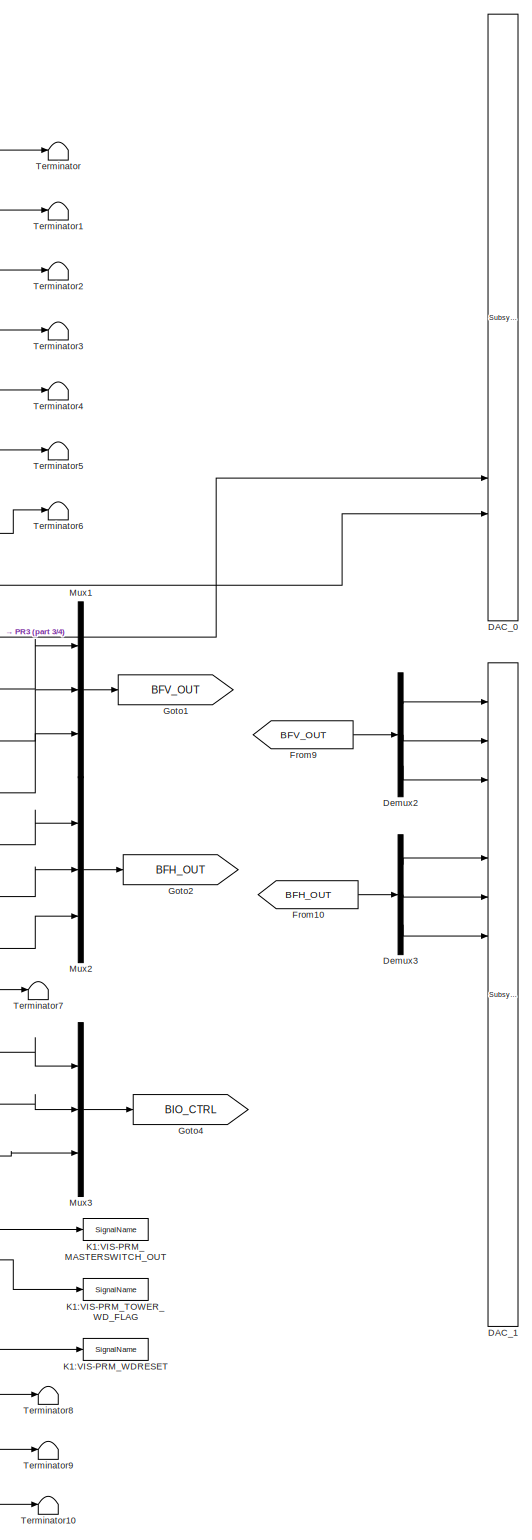
[diagram: root canvas - part 1/4, center side, full height]
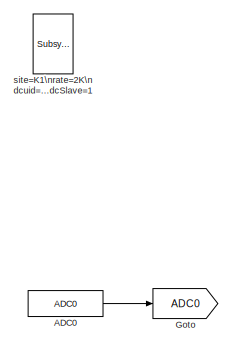
[diagram: root canvas - part 2/4, top left region]
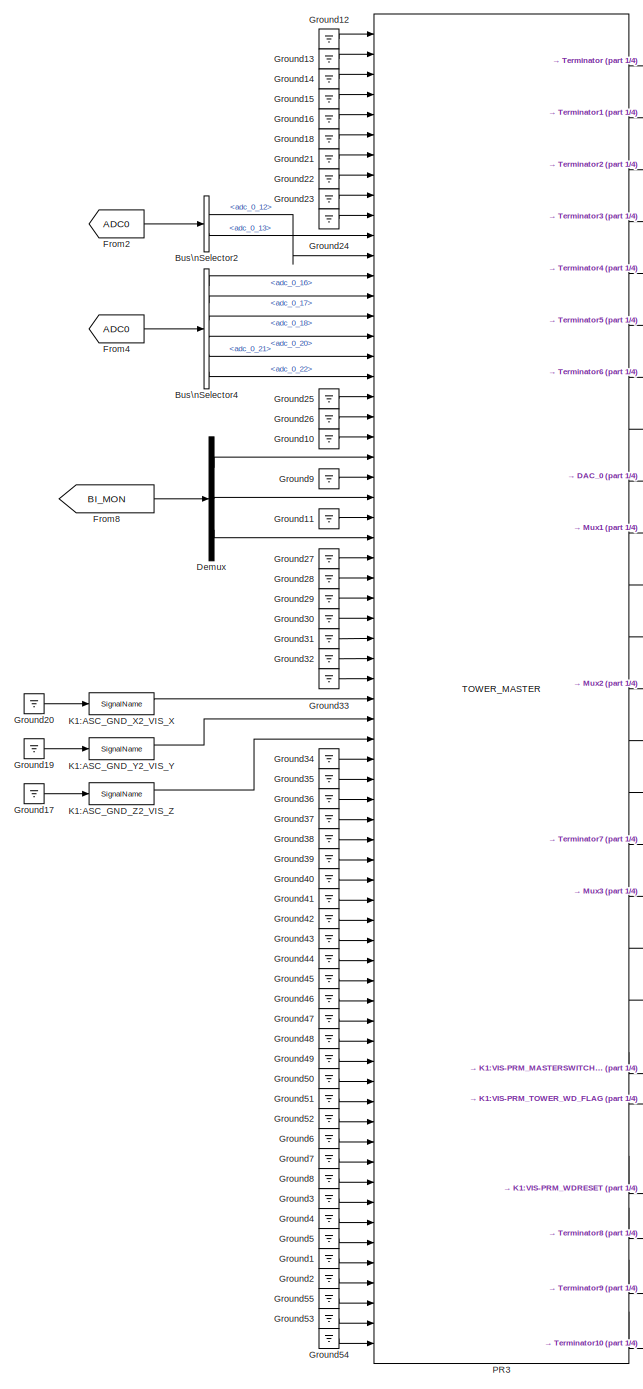
[diagram: root canvas - part 3/4, left side, full height]
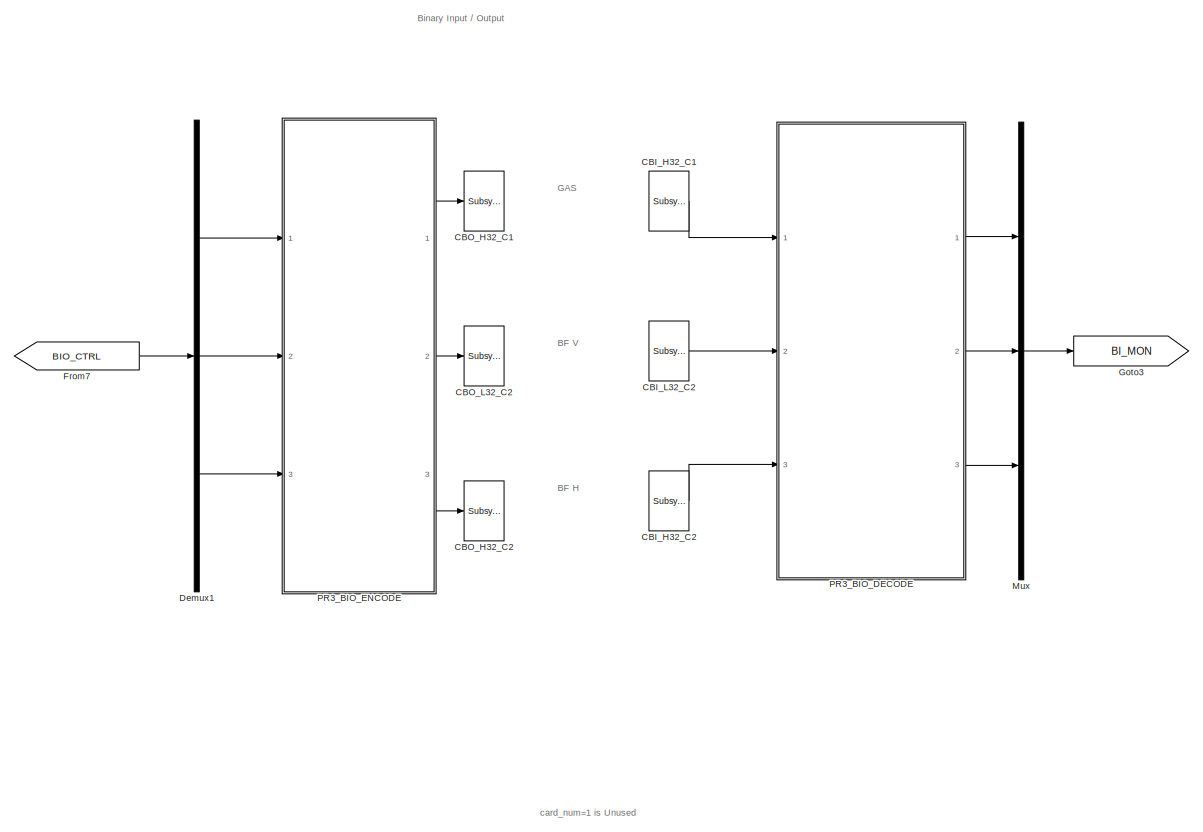
[diagram: root canvas - part 4/4, middle right region]
MODEL k1vispr3t
KIND model
BLOCK [Reference] ADC0  REF=cdsAdcx0/ADC0
  AttributesFormatString = %<Description>\\n%<Tag>
  Description = type-GSC_16AI64SSA\ncard_num=0
  Ports = [0, 1]
  SID = 271
  SourceBlock = cdsAdcx0/ADC0
  SourceType = SubSystem
  Tag = cdsAdc
BLOCK [BusSelector] Bus\nSelector2
  AttributesFormatString = %<Description>
  Description = ADC Selector
  OutputSignals = adc_0_12,adc_0_13
  Ports = [1, 2]
  SID = 403
BLOCK [BusSelector] Bus\nSelector4
  AttributesFormatString = %<Description>
  Description = ADC Selector
  OutputSignals = adc_0_16,adc_0_17,adc_0_18,adc_0_20,adc_0_21,adc_0_22
  Ports = [1, 6]
  SID = 635
BLOCK [Reference] CBI_H32_C1  REF=cdsCDI64/Subsystem
  AttributesFormatString = %<Tag>\\n%<Description>
  Description = card_num=3
  Ports = [0, 1]
  SID = 1011
  SourceBlock = cdsCDI64/Subsystem
  SourceType = SubSystem
  Tag = cdsCDI64
BLOCK [Reference] CBI_H32_C2  REF=cdsCDI64/Subsystem
  AttributesFormatString = %<Tag>\\n%<Description>
  Description = card_num=5
  Ports = [0, 1]
  SID = 1012
  SourceBlock = cdsCDI64/Subsystem
  SourceType = SubSystem
  Tag = cdsCDI64
BLOCK [Reference] CBI_L32_C2  REF=cdsCDI64/Subsystem
  AttributesFormatString = %<Tag>\\n%<Description>
  Description = card_num=4
  Ports = [0, 1]
  SID = 1005
  SourceBlock = cdsCDI64/Subsystem
  SourceType = SubSystem
  Tag = cdsCDI64
BLOCK [Reference] CBO_H32_C1  REF=cdsCDO64/Subsystem
  AttributesFormatString = %<Tag>\\n%<Description>
  Description = card_num=3
  Ports = [1]
  SID = 1009
  SourceBlock = cdsCDO64/Subsystem
  SourceType = SubSystem
  Tag = cdsCDO64
BLOCK [Reference] CBO_H32_C2  REF=cdsCDO64/Subsystem
  AttributesFormatString = %<Tag>\\n%<Description>
  Description = card_num=5
  Ports = [1]
  SID = 1010
  SourceBlock = cdsCDO64/Subsystem
  SourceType = SubSystem
  Tag = cdsCDO64
BLOCK [Reference] CBO_L32_C2  REF=cdsCDO64/Subsystem
  AttributesFormatString = %<Tag>\\n%<Description>
  Description = card_num=4
  Ports = [1]
  SID = 1003
  SourceBlock = cdsCDO64/Subsystem
  SourceType = SubSystem
  Tag = cdsCDO64
BLOCK [Reference] DAC_0  REF=dac/Subsystem  (lib defined in slx_40ef132df75b, slx_b7657ccccc5b, +4 more)
  AttributesFormatString = %<Description>
  Description = type=GSC_16AO16,\ncard_num=0
  Ports = [16]
  SID = 378
  SourceBlock = dac/Subsystem
  SourceType = SubSystem
BLOCK [Reference] DAC_1  REF=dac/Subsystem  (lib defined in slx_40ef132df75b, slx_b7657ccccc5b, +4 more)
  AttributesFormatString = %<Description>
  Description = type=GSC_16AO16,\ncard_num=1
  Ports = [16]
  SID = 637
  SourceBlock = dac/Subsystem
  SourceType = SubSystem
BLOCK [Demux] Demux
  DisplayOption = bar
  Outputs = 3
  Ports = [1, 3]
  SID = 971
BLOCK [Demux] Demux1
  DisplayOption = bar
  Outputs = 3
  Ports = [1, 3]
  SID = 906
BLOCK [Demux] Demux2
  DisplayOption = bar
  Outputs = 3
  Ports = [1, 3]
  SID = 989
BLOCK [Demux] Demux3
  DisplayOption = bar
  Outputs = 3
  Ports = [1, 3]
  SID = 990
BLOCK [From] From10
  GotoTag = BFH_OUT
  SID = 991
BLOCK [From] From2
  GotoTag = ADC0
  SID = 404
BLOCK [From] From4
  GotoTag = ADC0
  SID = 636
BLOCK [From] From7
  GotoTag = BIO_CTRL
  SID = 907
BLOCK [From] From8
  GotoTag = BI_MON
  SID = 972
BLOCK [From] From9
  GotoTag = BFV_OUT
  SID = 988
BLOCK [Goto] Goto
  GotoTag = ADC0
  SID = 396
BLOCK [Goto] Goto1
  GotoTag = BFV_OUT
  SID = 982
BLOCK [Goto] Goto2
  GotoTag = BFH_OUT
  SID = 985
BLOCK [Goto] Goto3
  GotoTag = BI_MON
  SID = 908
BLOCK [Goto] Goto4
  GotoTag = BIO_CTRL
  SID = 993
BLOCK [Ground] Ground1
  SID = 1080
BLOCK [Ground] Ground10
  SID = 977
BLOCK [Ground] Ground11
  SID = 978
BLOCK [Ground] Ground12
  SID = 1833
BLOCK [Ground] Ground13
  SID = 1834
BLOCK [Ground] Ground14
  SID = 1835
BLOCK [Ground] Ground15
  SID = 1836
BLOCK [Ground] Ground16
  SID = 1837
BLOCK [Ground] Ground17
  SID = 1017
BLOCK [Ground] Ground18
  SID = 1838
BLOCK [Ground] Ground19
  SID = 1025
BLOCK [Ground] Ground2
  SID = 1081
BLOCK [Ground] Ground20
  SID = 1026
BLOCK [Ground] Ground21
  SID = 1839
BLOCK [Ground] Ground22
  SID = 1840
BLOCK [Ground] Ground23
  SID = 1841
BLOCK [Ground] Ground24
  SID = 1842
BLOCK [Ground] Ground25
  SID = 1843
BLOCK [Ground] Ground26
  SID = 1844
BLOCK [Ground] Ground27
  SID = 1845
BLOCK [Ground] Ground28
  SID = 1846
BLOCK [Ground] Ground29
  SID = 1847
BLOCK [Ground] Ground3
  SID = 1823
BLOCK [Ground] Ground30
  SID = 1848
BLOCK [Ground] Ground31
  SID = 1849
BLOCK [Ground] Ground32
  SID = 1850
BLOCK [Ground] Ground33
  SID = 1851
BLOCK [Ground] Ground34
  SID = 1852
BLOCK [Ground] Ground35
  SID = 1853
BLOCK [Ground] Ground36
  SID = 1854
BLOCK [Ground] Ground37
  SID = 1855
BLOCK [Ground] Ground38
  SID = 1856
BLOCK [Ground] Ground39
  SID = 1857
BLOCK [Ground] Ground4
  SID = 1824
BLOCK [Ground] Ground40
  SID = 1858
BLOCK [Ground] Ground41
  SID = 1859
BLOCK [Ground] Ground42
  SID = 1860
BLOCK [Ground] Ground43
  SID = 1861
BLOCK [Ground] Ground44
  SID = 1862
BLOCK [Ground] Ground45
  SID = 1863
BLOCK [Ground] Ground46
  SID = 1864
BLOCK [Ground] Ground47
  SID = 1865
BLOCK [Ground] Ground48
  SID = 1866
BLOCK [Ground] Ground49
  SID = 1867
BLOCK [Ground] Ground5
  SID = 1825
BLOCK [Ground] Ground50
  SID = 1868
BLOCK [Ground] Ground51
  SID = 1869
BLOCK [Ground] Ground52
  SID = 1870
BLOCK [Ground] Ground53
  SID = 1879
BLOCK [Ground] Ground54
  SID = 1880
BLOCK [Ground] Ground55
  SID = 1881
BLOCK [Ground] Ground6
  SID = 1826
BLOCK [Ground] Ground7
  SID = 1827
BLOCK [Ground] Ground8
  SID = 1828
BLOCK [Ground] Ground9
  SID = 976
BLOCK [Reference] K1:ASC_GND_X2_VIS_X  REF=cdsIPCx/SignalName
  AttributesFormatString = %<Tag>
  Description = Inter-Process Communication via PCI Express network.
  Ports = [1, 2]
  SID = 1027
  SourceBlock = cdsIPCx/SignalName
  SourceType = SubSystem
  Tag = cdsIPCx_PCIE
BLOCK [Reference] K1:ASC_GND_Y2_VIS_Y  REF=cdsIPCx/SignalName
  AttributesFormatString = %<Tag>
  Description = Inter-Process Communication via PCI Express network.
  Ports = [1, 2]
  SID = 1028
  SourceBlock = cdsIPCx/SignalName
  SourceType = SubSystem
  Tag = cdsIPCx_PCIE
BLOCK [Reference] K1:ASC_GND_Z2_VIS_Z  REF=cdsIPCx/SignalName
  AttributesFormatString = %<Tag>
  Description = Inter-Process Communication via PCI Express network.
  Ports = [1, 2]
  SID = 1029
  SourceBlock = cdsIPCx/SignalName
  SourceType = SubSystem
  Tag = cdsIPCx_PCIE
BLOCK [Reference] K1:VIS-PRM_MASTERSWITCH_OUT  REF=cdsIPCx/SignalName
  AttributesFormatString = %<Tag>
  Description = Inter-Process Communication via Shared memory.
  Ports = [1, 2]
  SID = 1829
  SourceBlock = cdsIPCx/SignalName
  SourceType = SubSystem
  Tag = cdsIPCx_SHMEM
BLOCK [Reference] K1:VIS-PRM_TOWER_WD_FLAG  REF=cdsIPCx/SignalName
  AttributesFormatString = %<Tag>
  Description = Inter-Process Communication via Shared memory.
  Ports = [1, 2]
  SID = 1830
  SourceBlock = cdsIPCx/SignalName
  SourceType = SubSystem
  Tag = cdsIPCx_SHMEM
BLOCK [Reference] K1:VIS-PRM_WDRESET  REF=cdsIPCx/SignalName
  AttributesFormatString = %<Tag>
  Description = Inter-Process Communication via Shared memory.
  Ports = [1, 2]
  SID = 1831
  SourceBlock = cdsIPCx/SignalName
  SourceType = SubSystem
  Tag = cdsIPCx_SHMEM
BLOCK [Mux] Mux
  DisplayOption = bar
  Inputs = 3
  Ports = [3, 1]
  SID = 909
BLOCK [Mux] Mux1
  DisplayOption = bar
  Inputs = 3
  Ports = [3, 1]
  SID = 981
BLOCK [Mux] Mux2
  DisplayOption = bar
  Inputs = 3
  Ports = [3, 1]
  SID = 986
BLOCK [Mux] Mux3
  DisplayOption = bar
  Inputs = 3
  Ports = [3, 1]
  SID = 992
BLOCK [Reference] PR3  REF=TOWER_MASTER/TOWER_MASTER
  Ports = [66, 25]
  SID = 1832
  SourceBlock = TOWER_MASTER/TOWER_MASTER
  SourceType = SubSystem
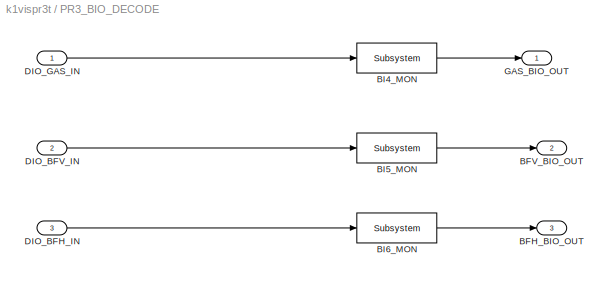
BLOCK [SubSystem] PR3_BIO_DECODE
  Ports = [3, 3]
  RequestExecContextInheritance = off
  SID = 654
  Variant = off
BLOCK [Outport] PR3_BIO_DECODE/BFH_BIO_OUT
  IconDisplay = Port number
  Port = 3
  SID = 969
BLOCK [Outport] PR3_BIO_DECODE/BFV_BIO_OUT
  IconDisplay = Port number
  Port = 2
  SID = 669
BLOCK [Reference] PR3_BIO_DECODE/BI4_MON  REF=cdsEpicsOut/Subsystem
  AttributesFormatString = %<Tag>
  Description = Purpose:                                          \nOutput a FE signal to an EPICS channel.           \n                                                  \nOperation:                                        \nTakes input value and passes it to EPICS record.  \n                                                  \nUsage:                                            \nName the part with the desired EPICS...<+14ch>  <repeated x6 — deduplicated; at blocks: BI4_MON, BI5_MON, BI6_MON, DIO_3_OUT, DIO_4_OUT, DIO_4_OUT1>
  Ports = [1, 1]
  SID = 663
  SourceBlock = cdsEpicsOut/Subsystem
  SourceType = SubSystem
  Tag = cdsEpicsOutput
BLOCK [Reference] PR3_BIO_DECODE/BI5_MON  REF=cdsEpicsOut/Subsystem
  AttributesFormatString = %<Tag>
  Ports = [1, 1]
  SID = 664
  SourceBlock = cdsEpicsOut/Subsystem
  SourceType = SubSystem
  Tag = cdsEpicsOutput
BLOCK [Reference] PR3_BIO_DECODE/BI6_MON  REF=cdsEpicsOut/Subsystem
  AttributesFormatString = %<Tag>
  Ports = [1, 1]
  SID = 968
  SourceBlock = cdsEpicsOut/Subsystem
  SourceType = SubSystem
  Tag = cdsEpicsOutput
BLOCK [Inport] PR3_BIO_DECODE/DIO_BFH_IN
  IconDisplay = Port number
  Port = 3
  SID = 967
BLOCK [Inport] PR3_BIO_DECODE/DIO_BFV_IN
  IconDisplay = Port number
  Port = 2
  SID = 659
BLOCK [Inport] PR3_BIO_DECODE/DIO_GAS_IN
  IconDisplay = Port number
  SID = 658
BLOCK [Outport] PR3_BIO_DECODE/GAS_BIO_OUT
  IconDisplay = Port number
  SID = 668
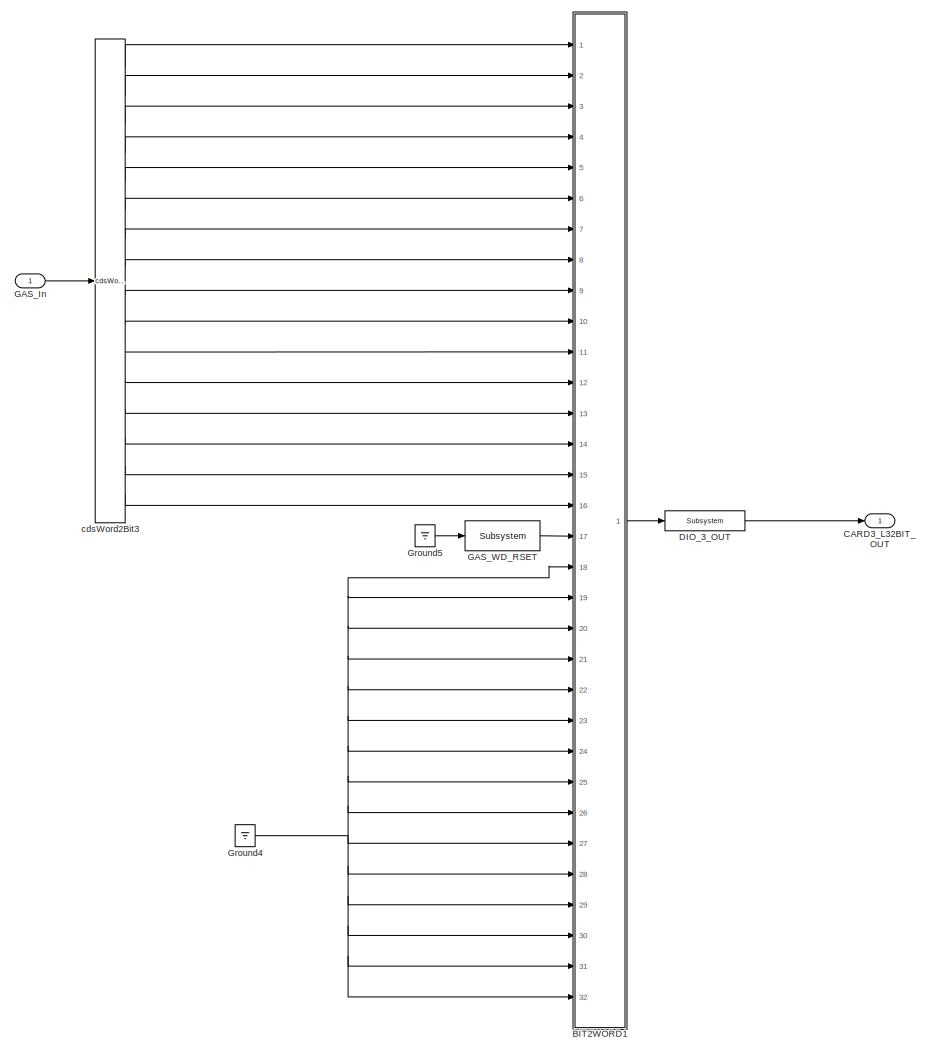
[diagram: PR3_BIO_ENCODE - part 1/3, top right region]
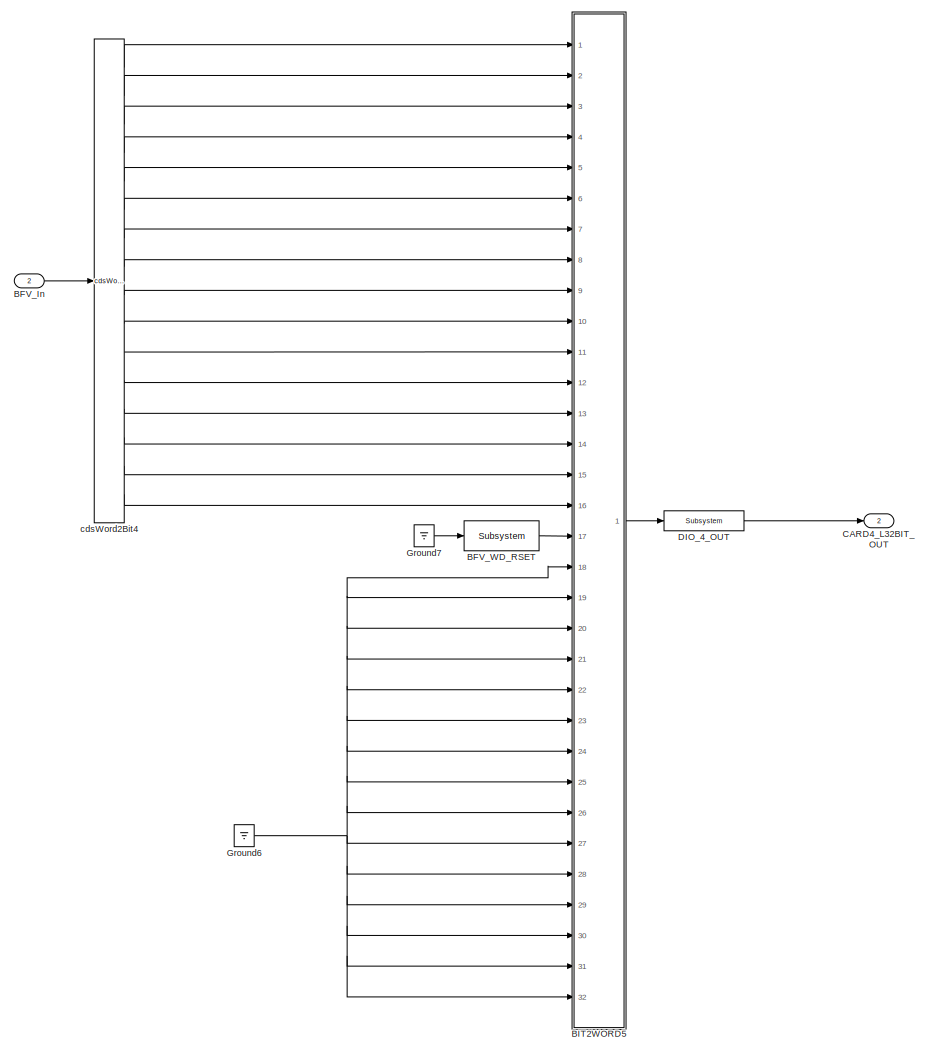
[diagram: PR3_BIO_ENCODE - part 2/3, bottom right region]
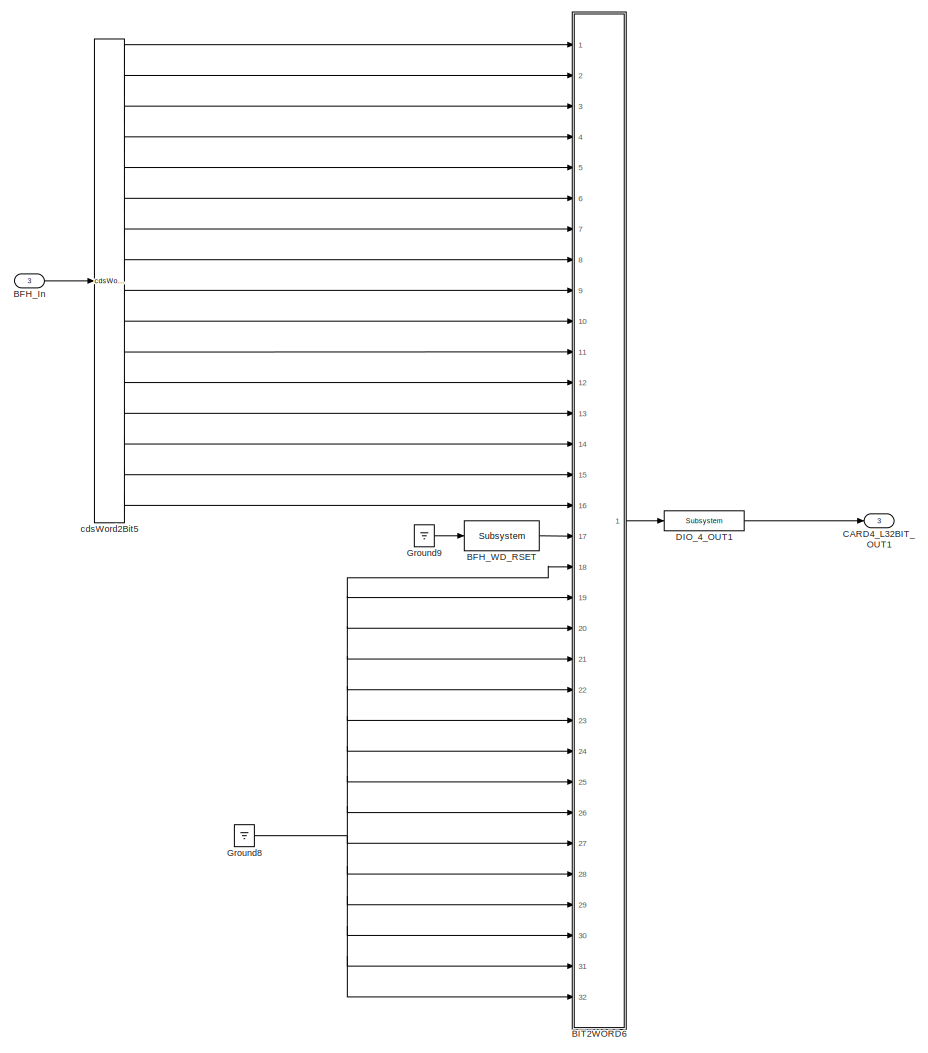
[diagram: PR3_BIO_ENCODE - part 3/3, bottom left region]
BLOCK [SubSystem] PR3_BIO_ENCODE
  Ports = [3, 3]
  RequestExecContextInheritance = off
  SID = 670
  Variant = off
BLOCK [Inport] PR3_BIO_ENCODE/BFH_In
  IconDisplay = Port number
  Port = 3
  SID = 918
BLOCK [Reference] PR3_BIO_ENCODE/BFH_WD_RSET  REF=cdsEpicsBinIn/Subsystem
  AttributesFormatString = %<Tag>
  Description = Purpose:                                                                            \nCreate an EPICS binary (0 or 1) input channel to the FE realtime controls.          \n                                                                                    \nOperation:                                                                          \nOutputs value from an EPICS ai record. Value is binary i...<+252ch>  <repeated x3 — deduplicated; at blocks: BFH_WD_RSET, BFV_WD_RSET, GAS_WD_RSET>
  Ports = [1, 1]
  SID = 960
  SourceBlock = cdsEpicsBinIn/Subsystem
  SourceType = SubSystem
  Tag = cdsEpicsBinIn
BLOCK [Inport] PR3_BIO_ENCODE/BFV_In
  IconDisplay = Port number
  Port = 2
  SID = 675
BLOCK [Reference] PR3_BIO_ENCODE/BFV_WD_RSET  REF=cdsEpicsBinIn/Subsystem
  AttributesFormatString = %<Tag>
  Ports = [1, 1]
  SID = 884
  SourceBlock = cdsEpicsBinIn/Subsystem
  SourceType = SubSystem
  Tag = cdsEpicsBinIn
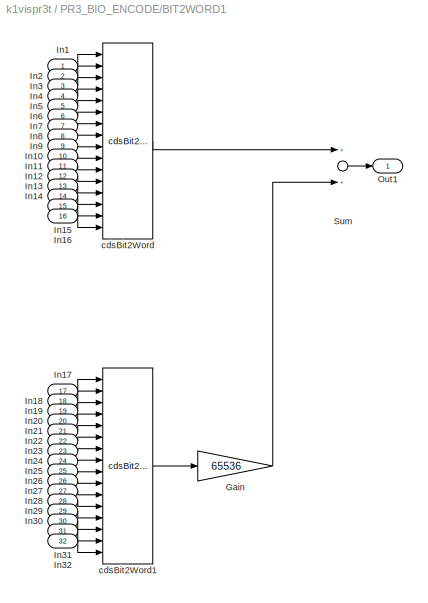
BLOCK [SubSystem] PR3_BIO_ENCODE/BIT2WORD1
  Ports = [32, 1]
  RequestExecContextInheritance = off
  SID = 676
  Variant = off
BLOCK [Gain] PR3_BIO_ENCODE/BIT2WORD1/Gain
  Gain = 65536
  OutDataTypeStr = Inherit: Inherit via internal rule
  ParamDataTypeStr = Inherit: Inherit via internal rule
  SID = 709
  SaturateOnIntegerOverflow = off
BLOCK [Inport] PR3_BIO_ENCODE/BIT2WORD1/In1
  IconDisplay = Port number
  SID = 677
BLOCK [Inport] PR3_BIO_ENCODE/BIT2WORD1/In10
  IconDisplay = Port number
  Port = 10
  SID = 686
BLOCK [Inport] PR3_BIO_ENCODE/BIT2WORD1/In11
  IconDisplay = Port number
  Port = 11
  SID = 687
BLOCK [Inport] PR3_BIO_ENCODE/BIT2WORD1/In12
  IconDisplay = Port number
  Port = 12
  SID = 688
BLOCK [Inport] PR3_BIO_ENCODE/BIT2WORD1/In13
  IconDisplay = Port number
  Port = 13
  SID = 689
BLOCK [Inport] PR3_BIO_ENCODE/BIT2WORD1/In14
  IconDisplay = Port number
  Port = 14
  SID = 690
BLOCK [Inport] PR3_BIO_ENCODE/BIT2WORD1/In15
  IconDisplay = Port number
  Port = 15
  SID = 691
BLOCK [Inport] PR3_BIO_ENCODE/BIT2WORD1/In16
  IconDisplay = Port number
  Port = 16
  SID = 692
BLOCK [Inport] PR3_BIO_ENCODE/BIT2WORD1/In17
  IconDisplay = Port number
  Port = 17
  SID = 693
BLOCK [Inport] PR3_BIO_ENCODE/BIT2WORD1/In18
  IconDisplay = Port number
  Port = 18
  SID = 694
BLOCK [Inport] PR3_BIO_ENCODE/BIT2WORD1/In19
  IconDisplay = Port number
  Port = 19
  SID = 695
BLOCK [Inport] PR3_BIO_ENCODE/BIT2WORD1/In2
  IconDisplay = Port number
  Port = 2
  SID = 678
BLOCK [Inport] PR3_BIO_ENCODE/BIT2WORD1/In20
  IconDisplay = Port number
  Port = 20
  SID = 696
BLOCK [Inport] PR3_BIO_ENCODE/BIT2WORD1/In21
  IconDisplay = Port number
  Port = 21
  SID = 697
BLOCK [Inport] PR3_BIO_ENCODE/BIT2WORD1/In22
  IconDisplay = Port number
  Port = 22
  SID = 698
BLOCK [Inport] PR3_BIO_ENCODE/BIT2WORD1/In23
  IconDisplay = Port number
  Port = 23
  SID = 699
BLOCK [Inport] PR3_BIO_ENCODE/BIT2WORD1/In24
  IconDisplay = Port number
  Port = 24
  SID = 700
BLOCK [Inport] PR3_BIO_ENCODE/BIT2WORD1/In25
  IconDisplay = Port number
  Port = 25
  SID = 701
BLOCK [Inport] PR3_BIO_ENCODE/BIT2WORD1/In26
  IconDisplay = Port number
  Port = 26
  SID = 702
BLOCK [Inport] PR3_BIO_ENCODE/BIT2WORD1/In27
  IconDisplay = Port number
  Port = 27
  SID = 703
BLOCK [Inport] PR3_BIO_ENCODE/BIT2WORD1/In28
  IconDisplay = Port number
  Port = 28
  SID = 704
BLOCK [Inport] PR3_BIO_ENCODE/BIT2WORD1/In29
  IconDisplay = Port number
  Port = 29
  SID = 705
BLOCK [Inport] PR3_BIO_ENCODE/BIT2WORD1/In3
  IconDisplay = Port number
  Port = 3
  SID = 679
BLOCK [Inport] PR3_BIO_ENCODE/BIT2WORD1/In30
  IconDisplay = Port number
  Port = 30
  SID = 706
BLOCK [Inport] PR3_BIO_ENCODE/BIT2WORD1/In31
  IconDisplay = Port number
  Port = 31
  SID = 707
BLOCK [Inport] PR3_BIO_ENCODE/BIT2WORD1/In32
  IconDisplay = Port number
  Port = 32
  SID = 708
BLOCK [Inport] PR3_BIO_ENCODE/BIT2WORD1/In4
  IconDisplay = Port number
  Port = 4
  SID = 680
BLOCK [Inport] PR3_BIO_ENCODE/BIT2WORD1/In5
  IconDisplay = Port number
  Port = 5
  SID = 681
BLOCK [Inport] PR3_BIO_ENCODE/BIT2WORD1/In6
  IconDisplay = Port number
  Port = 6
  SID = 682
BLOCK [Inport] PR3_BIO_ENCODE/BIT2WORD1/In7
  IconDisplay = Port number
  Port = 7
  SID = 683
BLOCK [Inport] PR3_BIO_ENCODE/BIT2WORD1/In8
  IconDisplay = Port number
  Port = 8
  SID = 684
BLOCK [Inport] PR3_BIO_ENCODE/BIT2WORD1/In9
  IconDisplay = Port number
  Port = 9
  SID = 685
BLOCK [Outport] PR3_BIO_ENCODE/BIT2WORD1/Out1
  IconDisplay = Port number
  SID = 713
BLOCK [Sum] PR3_BIO_ENCODE/BIT2WORD1/Sum
  InputSameDT = off
  OutDataTypeStr = Inherit: Inherit via internal rule
  Ports = [2, 1]
  SID = 710
  SaturateOnIntegerOverflow = off
BLOCK [Reference] PR3_BIO_ENCODE/BIT2WORD1/cdsBit2Word  REF=cdsBit2Word/cdsBit2Word
  AttributesFormatString = %<Tag>
  Description = Forms single 16 bit integer from 16 0/1 inputs.
  Ports = [16, 1]
  SID = 711
  SourceBlock = cdsBit2Word/cdsBit2Word
  SourceType = SubSystem
  Tag = cdsBit2Word
BLOCK [Reference] PR3_BIO_ENCODE/BIT2WORD1/cdsBit2Word1  REF=cdsBit2Word/cdsBit2Word
  AttributesFormatString = %<Tag>
  Description = Forms single 16 bit integer from 16 0/1 inputs.
  Ports = [16, 1]
  SID = 712
  SourceBlock = cdsBit2Word/cdsBit2Word
  SourceType = SubSystem
  Tag = cdsBit2Word
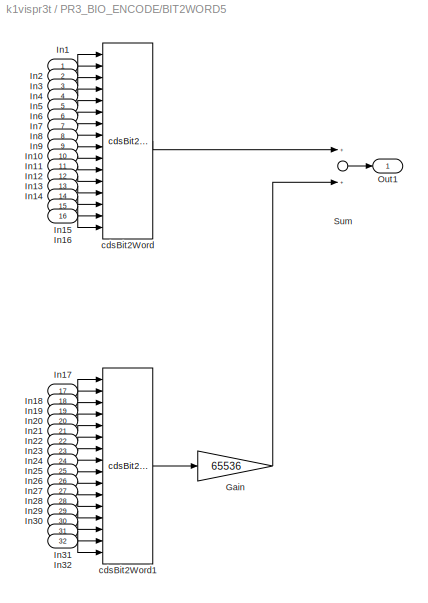
BLOCK [SubSystem] PR3_BIO_ENCODE/BIT2WORD5
  Ports = [32, 1]
  RequestExecContextInheritance = off
  SID = 828
  Variant = off
BLOCK [Gain] PR3_BIO_ENCODE/BIT2WORD5/Gain
  Gain = 65536
  OutDataTypeStr = Inherit: Inherit via internal rule
  ParamDataTypeStr = Inherit: Inherit via internal rule
  SID = 861
  SaturateOnIntegerOverflow = off
BLOCK [Inport] PR3_BIO_ENCODE/BIT2WORD5/In1
  IconDisplay = Port number
  SID = 829
BLOCK [Inport] PR3_BIO_ENCODE/BIT2WORD5/In10
  IconDisplay = Port number
  Port = 10
  SID = 838
BLOCK [Inport] PR3_BIO_ENCODE/BIT2WORD5/In11
  IconDisplay = Port number
  Port = 11
  SID = 839
BLOCK [Inport] PR3_BIO_ENCODE/BIT2WORD5/In12
  IconDisplay = Port number
  Port = 12
  SID = 840
BLOCK [Inport] PR3_BIO_ENCODE/BIT2WORD5/In13
  IconDisplay = Port number
  Port = 13
  SID = 841
BLOCK [Inport] PR3_BIO_ENCODE/BIT2WORD5/In14
  IconDisplay = Port number
  Port = 14
  SID = 842
BLOCK [Inport] PR3_BIO_ENCODE/BIT2WORD5/In15
  IconDisplay = Port number
  Port = 15
  SID = 843
BLOCK [Inport] PR3_BIO_ENCODE/BIT2WORD5/In16
  IconDisplay = Port number
  Port = 16
  SID = 844
BLOCK [Inport] PR3_BIO_ENCODE/BIT2WORD5/In17
  IconDisplay = Port number
  Port = 17
  SID = 845
BLOCK [Inport] PR3_BIO_ENCODE/BIT2WORD5/In18
  IconDisplay = Port number
  Port = 18
  SID = 846
BLOCK [Inport] PR3_BIO_ENCODE/BIT2WORD5/In19
  IconDisplay = Port number
  Port = 19
  SID = 847
BLOCK [Inport] PR3_BIO_ENCODE/BIT2WORD5/In2
  IconDisplay = Port number
  Port = 2
  SID = 830
BLOCK [Inport] PR3_BIO_ENCODE/BIT2WORD5/In20
  IconDisplay = Port number
  Port = 20
  SID = 848
BLOCK [Inport] PR3_BIO_ENCODE/BIT2WORD5/In21
  IconDisplay = Port number
  Port = 21
  SID = 849
BLOCK [Inport] PR3_BIO_ENCODE/BIT2WORD5/In22
  IconDisplay = Port number
  Port = 22
  SID = 850
BLOCK [Inport] PR3_BIO_ENCODE/BIT2WORD5/In23
  IconDisplay = Port number
  Port = 23
  SID = 851
BLOCK [Inport] PR3_BIO_ENCODE/BIT2WORD5/In24
  IconDisplay = Port number
  Port = 24
  SID = 852
BLOCK [Inport] PR3_BIO_ENCODE/BIT2WORD5/In25
  IconDisplay = Port number
  Port = 25
  SID = 853
BLOCK [Inport] PR3_BIO_ENCODE/BIT2WORD5/In26
  IconDisplay = Port number
  Port = 26
  SID = 854
BLOCK [Inport] PR3_BIO_ENCODE/BIT2WORD5/In27
  IconDisplay = Port number
  Port = 27
  SID = 855
BLOCK [Inport] PR3_BIO_ENCODE/BIT2WORD5/In28
  IconDisplay = Port number
  Port = 28
  SID = 856
BLOCK [Inport] PR3_BIO_ENCODE/BIT2WORD5/In29
  IconDisplay = Port number
  Port = 29
  SID = 857
BLOCK [Inport] PR3_BIO_ENCODE/BIT2WORD5/In3
  IconDisplay = Port number
  Port = 3
  SID = 831
BLOCK [Inport] PR3_BIO_ENCODE/BIT2WORD5/In30
  IconDisplay = Port number
  Port = 30
  SID = 858
BLOCK [Inport] PR3_BIO_ENCODE/BIT2WORD5/In31
  IconDisplay = Port number
  Port = 31
  SID = 859
BLOCK [Inport] PR3_BIO_ENCODE/BIT2WORD5/In32
  IconDisplay = Port number
  Port = 32
  SID = 860
BLOCK [Inport] PR3_BIO_ENCODE/BIT2WORD5/In4
  IconDisplay = Port number
  Port = 4
  SID = 832
BLOCK [Inport] PR3_BIO_ENCODE/BIT2WORD5/In5
  IconDisplay = Port number
  Port = 5
  SID = 833
BLOCK [Inport] PR3_BIO_ENCODE/BIT2WORD5/In6
  IconDisplay = Port number
  Port = 6
  SID = 834
BLOCK [Inport] PR3_BIO_ENCODE/BIT2WORD5/In7
  IconDisplay = Port number
  Port = 7
  SID = 835
BLOCK [Inport] PR3_BIO_ENCODE/BIT2WORD5/In8
  IconDisplay = Port number
  Port = 8
  SID = 836
BLOCK [Inport] PR3_BIO_ENCODE/BIT2WORD5/In9
  IconDisplay = Port number
  Port = 9
  SID = 837
BLOCK [Outport] PR3_BIO_ENCODE/BIT2WORD5/Out1
  IconDisplay = Port number
  SID = 865
BLOCK [Sum] PR3_BIO_ENCODE/BIT2WORD5/Sum
  InputSameDT = off
  OutDataTypeStr = Inherit: Inherit via internal rule
  Ports = [2, 1]
  SID = 862
  SaturateOnIntegerOverflow = off
BLOCK [Reference] PR3_BIO_ENCODE/BIT2WORD5/cdsBit2Word  REF=cdsBit2Word/cdsBit2Word
  AttributesFormatString = %<Tag>
  Description = Forms single 16 bit integer from 16 0/1 inputs.
  Ports = [16, 1]
  SID = 863
  SourceBlock = cdsBit2Word/cdsBit2Word
  SourceType = SubSystem
  Tag = cdsBit2Word
BLOCK [Reference] PR3_BIO_ENCODE/BIT2WORD5/cdsBit2Word1  REF=cdsBit2Word/cdsBit2Word
  AttributesFormatString = %<Tag>
  Description = Forms single 16 bit integer from 16 0/1 inputs.
  Ports = [16, 1]
  SID = 864
  SourceBlock = cdsBit2Word/cdsBit2Word
  SourceType = SubSystem
  Tag = cdsBit2Word
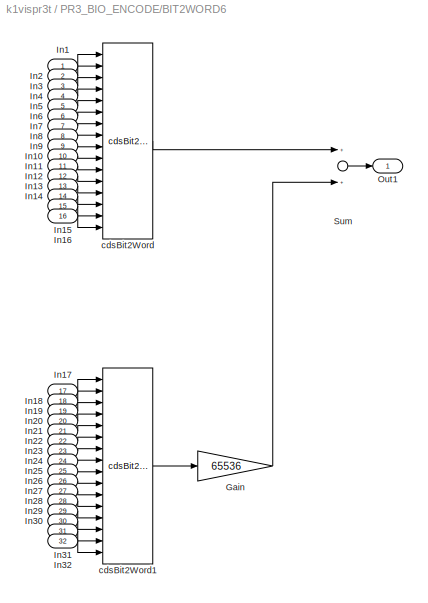
BLOCK [SubSystem] PR3_BIO_ENCODE/BIT2WORD6
  Ports = [32, 1]
  RequestExecContextInheritance = off
  SID = 919
  Variant = off
BLOCK [Gain] PR3_BIO_ENCODE/BIT2WORD6/Gain
  Gain = 65536
  OutDataTypeStr = Inherit: Inherit via internal rule
  ParamDataTypeStr = Inherit: Inherit via internal rule
  SID = 952
  SaturateOnIntegerOverflow = off
BLOCK [Inport] PR3_BIO_ENCODE/BIT2WORD6/In1
  IconDisplay = Port number
  SID = 920
BLOCK [Inport] PR3_BIO_ENCODE/BIT2WORD6/In10
  IconDisplay = Port number
  Port = 10
  SID = 929
BLOCK [Inport] PR3_BIO_ENCODE/BIT2WORD6/In11
  IconDisplay = Port number
  Port = 11
  SID = 930
BLOCK [Inport] PR3_BIO_ENCODE/BIT2WORD6/In12
  IconDisplay = Port number
  Port = 12
  SID = 931
BLOCK [Inport] PR3_BIO_ENCODE/BIT2WORD6/In13
  IconDisplay = Port number
  Port = 13
  SID = 932
BLOCK [Inport] PR3_BIO_ENCODE/BIT2WORD6/In14
  IconDisplay = Port number
  Port = 14
  SID = 933
BLOCK [Inport] PR3_BIO_ENCODE/BIT2WORD6/In15
  IconDisplay = Port number
  Port = 15
  SID = 934
BLOCK [Inport] PR3_BIO_ENCODE/BIT2WORD6/In16
  IconDisplay = Port number
  Port = 16
  SID = 935
BLOCK [Inport] PR3_BIO_ENCODE/BIT2WORD6/In17
  IconDisplay = Port number
  Port = 17
  SID = 936
BLOCK [Inport] PR3_BIO_ENCODE/BIT2WORD6/In18
  IconDisplay = Port number
  Port = 18
  SID = 937
BLOCK [Inport] PR3_BIO_ENCODE/BIT2WORD6/In19
  IconDisplay = Port number
  Port = 19
  SID = 938
BLOCK [Inport] PR3_BIO_ENCODE/BIT2WORD6/In2
  IconDisplay = Port number
  Port = 2
  SID = 921
BLOCK [Inport] PR3_BIO_ENCODE/BIT2WORD6/In20
  IconDisplay = Port number
  Port = 20
  SID = 939
BLOCK [Inport] PR3_BIO_ENCODE/BIT2WORD6/In21
  IconDisplay = Port number
  Port = 21
  SID = 940
BLOCK [Inport] PR3_BIO_ENCODE/BIT2WORD6/In22
  IconDisplay = Port number
  Port = 22
  SID = 941
BLOCK [Inport] PR3_BIO_ENCODE/BIT2WORD6/In23
  IconDisplay = Port number
  Port = 23
  SID = 942
BLOCK [Inport] PR3_BIO_ENCODE/BIT2WORD6/In24
  IconDisplay = Port number
  Port = 24
  SID = 943
BLOCK [Inport] PR3_BIO_ENCODE/BIT2WORD6/In25
  IconDisplay = Port number
  Port = 25
  SID = 944
BLOCK [Inport] PR3_BIO_ENCODE/BIT2WORD6/In26
  IconDisplay = Port number
  Port = 26
  SID = 945
BLOCK [Inport] PR3_BIO_ENCODE/BIT2WORD6/In27
  IconDisplay = Port number
  Port = 27
  SID = 946
BLOCK [Inport] PR3_BIO_ENCODE/BIT2WORD6/In28
  IconDisplay = Port number
  Port = 28
  SID = 947
BLOCK [Inport] PR3_BIO_ENCODE/BIT2WORD6/In29
  IconDisplay = Port number
  Port = 29
  SID = 948
BLOCK [Inport] PR3_BIO_ENCODE/BIT2WORD6/In3
  IconDisplay = Port number
  Port = 3
  SID = 922
BLOCK [Inport] PR3_BIO_ENCODE/BIT2WORD6/In30
  IconDisplay = Port number
  Port = 30
  SID = 949
BLOCK [Inport] PR3_BIO_ENCODE/BIT2WORD6/In31
  IconDisplay = Port number
  Port = 31
  SID = 950
BLOCK [Inport] PR3_BIO_ENCODE/BIT2WORD6/In32
  IconDisplay = Port number
  Port = 32
  SID = 951
BLOCK [Inport] PR3_BIO_ENCODE/BIT2WORD6/In4
  IconDisplay = Port number
  Port = 4
  SID = 923
BLOCK [Inport] PR3_BIO_ENCODE/BIT2WORD6/In5
  IconDisplay = Port number
  Port = 5
  SID = 924
BLOCK [Inport] PR3_BIO_ENCODE/BIT2WORD6/In6
  IconDisplay = Port number
  Port = 6
  SID = 925
BLOCK [Inport] PR3_BIO_ENCODE/BIT2WORD6/In7
  IconDisplay = Port number
  Port = 7
  SID = 926
BLOCK [Inport] PR3_BIO_ENCODE/BIT2WORD6/In8
  IconDisplay = Port number
  Port = 8
  SID = 927
BLOCK [Inport] PR3_BIO_ENCODE/BIT2WORD6/In9
  IconDisplay = Port number
  Port = 9
  SID = 928
BLOCK [Outport] PR3_BIO_ENCODE/BIT2WORD6/Out1
  IconDisplay = Port number
  SID = 956
BLOCK [Sum] PR3_BIO_ENCODE/BIT2WORD6/Sum
  InputSameDT = off
  OutDataTypeStr = Inherit: Inherit via internal rule
  Ports = [2, 1]
  SID = 953
  SaturateOnIntegerOverflow = off
BLOCK [Reference] PR3_BIO_ENCODE/BIT2WORD6/cdsBit2Word  REF=cdsBit2Word/cdsBit2Word
  AttributesFormatString = %<Tag>
  Description = Forms single 16 bit integer from 16 0/1 inputs.
  Ports = [16, 1]
  SID = 954
  SourceBlock = cdsBit2Word/cdsBit2Word
  SourceType = SubSystem
  Tag = cdsBit2Word
BLOCK [Reference] PR3_BIO_ENCODE/BIT2WORD6/cdsBit2Word1  REF=cdsBit2Word/cdsBit2Word
  AttributesFormatString = %<Tag>
  Description = Forms single 16 bit integer from 16 0/1 inputs.
  Ports = [16, 1]
  SID = 955
  SourceBlock = cdsBit2Word/cdsBit2Word
  SourceType = SubSystem
  Tag = cdsBit2Word
BLOCK [Outport] PR3_BIO_ENCODE/CARD3_L32BIT_OUT
  IconDisplay = Port number
  SID = 894
BLOCK [Outport] PR3_BIO_ENCODE/CARD4_L32BIT_OUT
  IconDisplay = Port number
  Port = 2
  SID = 895
BLOCK [Outport] PR3_BIO_ENCODE/CARD4_L32BIT_OUT1
  IconDisplay = Port number
  Port = 3
  SID = 962
BLOCK [Reference] PR3_BIO_ENCODE/DIO_3_OUT  REF=cdsEpicsOut/Subsystem
  AttributesFormatString = %<Tag>
  Ports = [1, 1]
  SID = 869
  SourceBlock = cdsEpicsOut/Subsystem
  SourceType = SubSystem
  Tag = cdsEpicsOutput
BLOCK [Reference] PR3_BIO_ENCODE/DIO_4_OUT  REF=cdsEpicsOut/Subsystem
  AttributesFormatString = %<Tag>
  Ports = [1, 1]
  SID = 870
  SourceBlock = cdsEpicsOut/Subsystem
  SourceType = SubSystem
  Tag = cdsEpicsOutput
BLOCK [Reference] PR3_BIO_ENCODE/DIO_4_OUT1  REF=cdsEpicsOut/Subsystem
  AttributesFormatString = %<Tag>
  Ports = [1, 1]
  SID = 957
  SourceBlock = cdsEpicsOut/Subsystem
  SourceType = SubSystem
  Tag = cdsEpicsOutput
BLOCK [Inport] PR3_BIO_ENCODE/GAS_In
  IconDisplay = Port number
  SID = 674
BLOCK [Reference] PR3_BIO_ENCODE/GAS_WD_RSET  REF=cdsEpicsBinIn/Subsystem
  AttributesFormatString = %<Tag>
  Ports = [1, 1]
  SID = 871
  SourceBlock = cdsEpicsBinIn/Subsystem
  SourceType = SubSystem
  Tag = cdsEpicsBinIn
BLOCK [Ground] PR3_BIO_ENCODE/Ground4
  SID = 876
BLOCK [Ground] PR3_BIO_ENCODE/Ground5
  SID = 877
BLOCK [Ground] PR3_BIO_ENCODE/Ground6
  SID = 878
BLOCK [Ground] PR3_BIO_ENCODE/Ground7
  SID = 881
BLOCK [Ground] PR3_BIO_ENCODE/Ground8
  SID = 958
BLOCK [Ground] PR3_BIO_ENCODE/Ground9
  SID = 959
BLOCK [Reference] PR3_BIO_ENCODE/cdsWord2Bit3  REF=cdsWord2Bit/cdsWord2Bit
  AttributesFormatString = cdsWord2Bit
  Description = Generate 16 0/1 outputs from single 16-bit integer input
  Ports = [1, 16]
  SID = 889
  SourceBlock = cdsWord2Bit/cdsWord2Bit
  SourceType = SubSystem
  Tag = cdsWord2Bit
BLOCK [Reference] PR3_BIO_ENCODE/cdsWord2Bit4  REF=cdsWord2Bit/cdsWord2Bit
  AttributesFormatString = cdsWord2Bit
  Description = Generate 16 0/1 outputs from single 16-bit integer input
  Ports = [1, 16]
  SID = 890
  SourceBlock = cdsWord2Bit/cdsWord2Bit
  SourceType = SubSystem
  Tag = cdsWord2Bit
BLOCK [Reference] PR3_BIO_ENCODE/cdsWord2Bit5  REF=cdsWord2Bit/cdsWord2Bit
  AttributesFormatString = cdsWord2Bit
  Description = Generate 16 0/1 outputs from single 16-bit integer input
  Ports = [1, 16]
  SID = 961
  SourceBlock = cdsWord2Bit/cdsWord2Bit
  SourceType = SubSystem
  Tag = cdsWord2Bit
BLOCK [Terminator] Terminator
  SID = 1871
BLOCK [Terminator] Terminator1
  SID = 1872
BLOCK [Terminator] Terminator10
  SID = 1884
BLOCK [Terminator] Terminator2
  SID = 1873
BLOCK [Terminator] Terminator3
  SID = 1874
BLOCK [Terminator] Terminator4
  SID = 1875
BLOCK [Terminator] Terminator5
  SID = 1876
BLOCK [Terminator] Terminator6
  SID = 1877
BLOCK [Terminator] Terminator7
  SID = 1878
BLOCK [Terminator] Terminator8
  SID = 1882
BLOCK [Terminator] Terminator9
  SID = 1883
BLOCK [Reference] site=K1\nrate=2K\ndcuid=50\nhost=k1pr0\nspecific_cpu=2\nadcSlave=1  REF=cdsParameters/Subsystem
  AttributesFormatString = %<Tag>
  Description = Purpose:                                                                                                                                                                                                                                \nProvide system parameters to the FE code generator to properly configure the generated EPICS names, rep rate of the FE controller, and the Data Acquisition node ID fo...<+2934ch>
  Ports = []
  SID = 336
  SourceBlock = cdsParameters/Subsystem
  SourceType = SubSystem
  Tag = cdsParameters
ANNOTATION (root): \n \n card_num=1 is Unused
ANNOTATION (root): \n \n BF H
ANNOTATION (root): \n \n BF V
ANNOTATION (root): \n \n GAS
ANNOTATION (root): Binary Input / Output
LINE ADC0:1 -> Goto:1
LINE Bus\nSelector2:1 -> PR3:12
LINE Bus\nSelector2:2 -> PR3:11
LINE Bus\nSelector4:1 -> PR3:13
LINE Bus\nSelector4:2 -> PR3:14
LINE Bus\nSelector4:3 -> PR3:15
LINE Bus\nSelector4:4 -> PR3:16
LINE Bus\nSelector4:5 -> PR3:17
LINE Bus\nSelector4:6 -> PR3:18
LINE CBI_H32_C1:1 -> PR3_BIO_DECODE:1
LINE CBI_H32_C2:1 -> PR3_BIO_DECODE:3
LINE CBI_L32_C2:1 -> PR3_BIO_DECODE:2
LINE Demux1:1 -> PR3_BIO_ENCODE:1
LINE Demux1:2 -> PR3_BIO_ENCODE:2
LINE Demux1:3 -> PR3_BIO_ENCODE:3
LINE Demux2:1 -> DAC_1:1
LINE Demux2:2 -> DAC_1:2
LINE Demux2:3 -> DAC_1:3
LINE Demux3:1 -> DAC_1:5
LINE Demux3:2 -> DAC_1:6
LINE Demux3:3 -> DAC_1:7
LINE Demux:1 -> PR3:22
LINE Demux:2 -> PR3:24
LINE Demux:3 -> PR3:26
LINE From10:1 -> Demux3:1
LINE From2:1 -> Bus\nSelector2:1
LINE From4:1 -> Bus\nSelector4:1
LINE From7:1 -> Demux1:1
LINE From8:1 -> Demux:1
LINE From9:1 -> Demux2:1
LINE Ground10:1 -> PR3:21
LINE Ground11:1 -> PR3:25
LINE Ground12:1 -> PR3:1
LINE Ground13:1 -> PR3:2
LINE Ground14:1 -> PR3:3
LINE Ground15:1 -> PR3:4
LINE Ground16:1 -> PR3:5
LINE Ground17:1 -> K1:ASC_GND_Z2_VIS_Z:1
LINE Ground18:1 -> PR3:6
LINE Ground19:1 -> K1:ASC_GND_Y2_VIS_Y:1
LINE Ground1:1 -> PR3:62
LINE Ground20:1 -> K1:ASC_GND_X2_VIS_X:1
LINE Ground21:1 -> PR3:7
LINE Ground22:1 -> PR3:8
LINE Ground23:1 -> PR3:9
LINE Ground24:1 -> PR3:10
LINE Ground25:1 -> PR3:19
LINE Ground26:1 -> PR3:20
LINE Ground27:1 -> PR3:27
LINE Ground28:1 -> PR3:28
LINE Ground29:1 -> PR3:29
LINE Ground2:1 -> PR3:63
LINE Ground30:1 -> PR3:30
LINE Ground31:1 -> PR3:31
LINE Ground32:1 -> PR3:32
LINE Ground33:1 -> PR3:33
LINE Ground34:1 -> PR3:37
LINE Ground35:1 -> PR3:38
LINE Ground36:1 -> PR3:39
LINE Ground37:1 -> PR3:40
LINE Ground38:1 -> PR3:41
LINE Ground39:1 -> PR3:42
LINE Ground3:1 -> PR3:59
LINE Ground40:1 -> PR3:43
LINE Ground41:1 -> PR3:44
LINE Ground42:1 -> PR3:45
LINE Ground43:1 -> PR3:46
LINE Ground44:1 -> PR3:47
LINE Ground45:1 -> PR3:48
LINE Ground46:1 -> PR3:49
LINE Ground47:1 -> PR3:50
LINE Ground48:1 -> PR3:51
LINE Ground49:1 -> PR3:52
LINE Ground4:1 -> PR3:60
LINE Ground50:1 -> PR3:53
LINE Ground51:1 -> PR3:54
LINE Ground52:1 -> PR3:55
LINE Ground53:1 -> PR3:65
LINE Ground54:1 -> PR3:66
LINE Ground55:1 -> PR3:64
LINE Ground5:1 -> PR3:61
LINE Ground6:1 -> PR3:56
LINE Ground7:1 -> PR3:57
LINE Ground8:1 -> PR3:58
LINE Ground9:1 -> PR3:23
LINE K1:ASC_GND_X2_VIS_X:1 -> PR3:34
LINE K1:ASC_GND_Y2_VIS_Y:1 -> PR3:35
LINE K1:ASC_GND_Z2_VIS_Z:1 -> PR3:36
LINE Mux1:1 -> Goto1:1
LINE Mux2:1 -> Goto2:1
LINE Mux3:1 -> Goto4:1
LINE Mux:1 -> Goto3:1
LINE PR3:1 -> Terminator:1
LINE PR3:10 -> Mux1:1
LINE PR3:11 -> Mux1:2
LINE PR3:12 -> Mux1:3
LINE PR3:13 -> Mux2:1
LINE PR3:14 -> Mux2:2
LINE PR3:15 -> Mux2:3
LINE PR3:16 -> Terminator7:1
LINE PR3:17 -> Mux3:1
LINE PR3:18 -> Mux3:2
LINE PR3:19 -> Mux3:3
LINE PR3:2 -> Terminator1:1
LINE PR3:20 -> K1:VIS-PRM_MASTERSWITCH_OUT:1
LINE PR3:21 -> K1:VIS-PRM_TOWER_WD_FLAG:1
LINE PR3:22 -> K1:VIS-PRM_WDRESET:1
LINE PR3:23 -> Terminator8:1
LINE PR3:24 -> Terminator9:1
LINE PR3:25 -> Terminator10:1
LINE PR3:3 -> Terminator2:1
LINE PR3:4 -> Terminator3:1
LINE PR3:5 -> Terminator4:1
LINE PR3:6 -> Terminator5:1
LINE PR3:7 -> Terminator6:1
LINE PR3:8 -> DAC_0:14
LINE PR3:9 -> DAC_0:13
LINE PR3_BIO_DECODE/BI4_MON:1 -> PR3_BIO_DECODE/GAS_BIO_OUT:1
LINE PR3_BIO_DECODE/BI5_MON:1 -> PR3_BIO_DECODE/BFV_BIO_OUT:1
LINE PR3_BIO_DECODE/BI6_MON:1 -> PR3_BIO_DECODE/BFH_BIO_OUT:1
LINE PR3_BIO_DECODE/DIO_BFH_IN:1 -> PR3_BIO_DECODE/BI6_MON:1
LINE PR3_BIO_DECODE/DIO_BFV_IN:1 -> PR3_BIO_DECODE/BI5_MON:1
LINE PR3_BIO_DECODE/DIO_GAS_IN:1 -> PR3_BIO_DECODE/BI4_MON:1
LINE PR3_BIO_DECODE:1 -> Mux:1
LINE PR3_BIO_DECODE:2 -> Mux:2
LINE PR3_BIO_DECODE:3 -> Mux:3
LINE PR3_BIO_ENCODE/BFH_In:1 -> PR3_BIO_ENCODE/cdsWord2Bit5:1
LINE PR3_BIO_ENCODE/BFH_WD_RSET:1 -> PR3_BIO_ENCODE/BIT2WORD6:17
LINE PR3_BIO_ENCODE/BFV_In:1 -> PR3_BIO_ENCODE/cdsWord2Bit4:1
LINE PR3_BIO_ENCODE/BFV_WD_RSET:1 -> PR3_BIO_ENCODE/BIT2WORD5:17
LINE PR3_BIO_ENCODE/BIT2WORD1/Gain:1 -> PR3_BIO_ENCODE/BIT2WORD1/Sum:2
LINE PR3_BIO_ENCODE/BIT2WORD1/In10:1 -> PR3_BIO_ENCODE/BIT2WORD1/cdsBit2Word:10
LINE PR3_BIO_ENCODE/BIT2WORD1/In11:1 -> PR3_BIO_ENCODE/BIT2WORD1/cdsBit2Word:11
LINE PR3_BIO_ENCODE/BIT2WORD1/In12:1 -> PR3_BIO_ENCODE/BIT2WORD1/cdsBit2Word:12
LINE PR3_BIO_ENCODE/BIT2WORD1/In13:1 -> PR3_BIO_ENCODE/BIT2WORD1/cdsBit2Word:13
LINE PR3_BIO_ENCODE/BIT2WORD1/In14:1 -> PR3_BIO_ENCODE/BIT2WORD1/cdsBit2Word:14
LINE PR3_BIO_ENCODE/BIT2WORD1/In15:1 -> PR3_BIO_ENCODE/BIT2WORD1/cdsBit2Word:15
LINE PR3_BIO_ENCODE/BIT2WORD1/In16:1 -> PR3_BIO_ENCODE/BIT2WORD1/cdsBit2Word:16
LINE PR3_BIO_ENCODE/BIT2WORD1/In17:1 -> PR3_BIO_ENCODE/BIT2WORD1/cdsBit2Word1:1
LINE PR3_BIO_ENCODE/BIT2WORD1/In18:1 -> PR3_BIO_ENCODE/BIT2WORD1/cdsBit2Word1:2
LINE PR3_BIO_ENCODE/BIT2WORD1/In19:1 -> PR3_BIO_ENCODE/BIT2WORD1/cdsBit2Word1:3
LINE PR3_BIO_ENCODE/BIT2WORD1/In1:1 -> PR3_BIO_ENCODE/BIT2WORD1/cdsBit2Word:1
LINE PR3_BIO_ENCODE/BIT2WORD1/In20:1 -> PR3_BIO_ENCODE/BIT2WORD1/cdsBit2Word1:4
LINE PR3_BIO_ENCODE/BIT2WORD1/In21:1 -> PR3_BIO_ENCODE/BIT2WORD1/cdsBit2Word1:5
LINE PR3_BIO_ENCODE/BIT2WORD1/In22:1 -> PR3_BIO_ENCODE/BIT2WORD1/cdsBit2Word1:6
LINE PR3_BIO_ENCODE/BIT2WORD1/In23:1 -> PR3_BIO_ENCODE/BIT2WORD1/cdsBit2Word1:7
LINE PR3_BIO_ENCODE/BIT2WORD1/In24:1 -> PR3_BIO_ENCODE/BIT2WORD1/cdsBit2Word1:8
LINE PR3_BIO_ENCODE/BIT2WORD1/In25:1 -> PR3_BIO_ENCODE/BIT2WORD1/cdsBit2Word1:9
LINE PR3_BIO_ENCODE/BIT2WORD1/In26:1 -> PR3_BIO_ENCODE/BIT2WORD1/cdsBit2Word1:10
LINE PR3_BIO_ENCODE/BIT2WORD1/In27:1 -> PR3_BIO_ENCODE/BIT2WORD1/cdsBit2Word1:11
LINE PR3_BIO_ENCODE/BIT2WORD1/In28:1 -> PR3_BIO_ENCODE/BIT2WORD1/cdsBit2Word1:12
LINE PR3_BIO_ENCODE/BIT2WORD1/In29:1 -> PR3_BIO_ENCODE/BIT2WORD1/cdsBit2Word1:13
LINE PR3_BIO_ENCODE/BIT2WORD1/In2:1 -> PR3_BIO_ENCODE/BIT2WORD1/cdsBit2Word:2
LINE PR3_BIO_ENCODE/BIT2WORD1/In30:1 -> PR3_BIO_ENCODE/BIT2WORD1/cdsBit2Word1:14
LINE PR3_BIO_ENCODE/BIT2WORD1/In31:1 -> PR3_BIO_ENCODE/BIT2WORD1/cdsBit2Word1:15
LINE PR3_BIO_ENCODE/BIT2WORD1/In32:1 -> PR3_BIO_ENCODE/BIT2WORD1/cdsBit2Word1:16
LINE PR3_BIO_ENCODE/BIT2WORD1/In3:1 -> PR3_BIO_ENCODE/BIT2WORD1/cdsBit2Word:3
LINE PR3_BIO_ENCODE/BIT2WORD1/In4:1 -> PR3_BIO_ENCODE/BIT2WORD1/cdsBit2Word:4
LINE PR3_BIO_ENCODE/BIT2WORD1/In5:1 -> PR3_BIO_ENCODE/BIT2WORD1/cdsBit2Word:5
LINE PR3_BIO_ENCODE/BIT2WORD1/In6:1 -> PR3_BIO_ENCODE/BIT2WORD1/cdsBit2Word:6
LINE PR3_BIO_ENCODE/BIT2WORD1/In7:1 -> PR3_BIO_ENCODE/BIT2WORD1/cdsBit2Word:7
LINE PR3_BIO_ENCODE/BIT2WORD1/In8:1 -> PR3_BIO_ENCODE/BIT2WORD1/cdsBit2Word:8
LINE PR3_BIO_ENCODE/BIT2WORD1/In9:1 -> PR3_BIO_ENCODE/BIT2WORD1/cdsBit2Word:9
LINE PR3_BIO_ENCODE/BIT2WORD1/Sum:1 -> PR3_BIO_ENCODE/BIT2WORD1/Out1:1
LINE PR3_BIO_ENCODE/BIT2WORD1/cdsBit2Word1:1 -> PR3_BIO_ENCODE/BIT2WORD1/Gain:1
LINE PR3_BIO_ENCODE/BIT2WORD1/cdsBit2Word:1 -> PR3_BIO_ENCODE/BIT2WORD1/Sum:1
LINE PR3_BIO_ENCODE/BIT2WORD1:1 -> PR3_BIO_ENCODE/DIO_3_OUT:1
LINE PR3_BIO_ENCODE/BIT2WORD5/Gain:1 -> PR3_BIO_ENCODE/BIT2WORD5/Sum:2
LINE PR3_BIO_ENCODE/BIT2WORD5/In10:1 -> PR3_BIO_ENCODE/BIT2WORD5/cdsBit2Word:10
LINE PR3_BIO_ENCODE/BIT2WORD5/In11:1 -> PR3_BIO_ENCODE/BIT2WORD5/cdsBit2Word:11
LINE PR3_BIO_ENCODE/BIT2WORD5/In12:1 -> PR3_BIO_ENCODE/BIT2WORD5/cdsBit2Word:12
LINE PR3_BIO_ENCODE/BIT2WORD5/In13:1 -> PR3_BIO_ENCODE/BIT2WORD5/cdsBit2Word:13
LINE PR3_BIO_ENCODE/BIT2WORD5/In14:1 -> PR3_BIO_ENCODE/BIT2WORD5/cdsBit2Word:14
LINE PR3_BIO_ENCODE/BIT2WORD5/In15:1 -> PR3_BIO_ENCODE/BIT2WORD5/cdsBit2Word:15
LINE PR3_BIO_ENCODE/BIT2WORD5/In16:1 -> PR3_BIO_ENCODE/BIT2WORD5/cdsBit2Word:16
LINE PR3_BIO_ENCODE/BIT2WORD5/In17:1 -> PR3_BIO_ENCODE/BIT2WORD5/cdsBit2Word1:1
LINE PR3_BIO_ENCODE/BIT2WORD5/In18:1 -> PR3_BIO_ENCODE/BIT2WORD5/cdsBit2Word1:2
LINE PR3_BIO_ENCODE/BIT2WORD5/In19:1 -> PR3_BIO_ENCODE/BIT2WORD5/cdsBit2Word1:3
LINE PR3_BIO_ENCODE/BIT2WORD5/In1:1 -> PR3_BIO_ENCODE/BIT2WORD5/cdsBit2Word:1
LINE PR3_BIO_ENCODE/BIT2WORD5/In20:1 -> PR3_BIO_ENCODE/BIT2WORD5/cdsBit2Word1:4
LINE PR3_BIO_ENCODE/BIT2WORD5/In21:1 -> PR3_BIO_ENCODE/BIT2WORD5/cdsBit2Word1:5
LINE PR3_BIO_ENCODE/BIT2WORD5/In22:1 -> PR3_BIO_ENCODE/BIT2WORD5/cdsBit2Word1:6
LINE PR3_BIO_ENCODE/BIT2WORD5/In23:1 -> PR3_BIO_ENCODE/BIT2WORD5/cdsBit2Word1:7
LINE PR3_BIO_ENCODE/BIT2WORD5/In24:1 -> PR3_BIO_ENCODE/BIT2WORD5/cdsBit2Word1:8
LINE PR3_BIO_ENCODE/BIT2WORD5/In25:1 -> PR3_BIO_ENCODE/BIT2WORD5/cdsBit2Word1:9
LINE PR3_BIO_ENCODE/BIT2WORD5/In26:1 -> PR3_BIO_ENCODE/BIT2WORD5/cdsBit2Word1:10
LINE PR3_BIO_ENCODE/BIT2WORD5/In27:1 -> PR3_BIO_ENCODE/BIT2WORD5/cdsBit2Word1:11
LINE PR3_BIO_ENCODE/BIT2WORD5/In28:1 -> PR3_BIO_ENCODE/BIT2WORD5/cdsBit2Word1:12
LINE PR3_BIO_ENCODE/BIT2WORD5/In29:1 -> PR3_BIO_ENCODE/BIT2WORD5/cdsBit2Word1:13
LINE PR3_BIO_ENCODE/BIT2WORD5/In2:1 -> PR3_BIO_ENCODE/BIT2WORD5/cdsBit2Word:2
LINE PR3_BIO_ENCODE/BIT2WORD5/In30:1 -> PR3_BIO_ENCODE/BIT2WORD5/cdsBit2Word1:14
LINE PR3_BIO_ENCODE/BIT2WORD5/In31:1 -> PR3_BIO_ENCODE/BIT2WORD5/cdsBit2Word1:15
LINE PR3_BIO_ENCODE/BIT2WORD5/In32:1 -> PR3_BIO_ENCODE/BIT2WORD5/cdsBit2Word1:16
LINE PR3_BIO_ENCODE/BIT2WORD5/In3:1 -> PR3_BIO_ENCODE/BIT2WORD5/cdsBit2Word:3
LINE PR3_BIO_ENCODE/BIT2WORD5/In4:1 -> PR3_BIO_ENCODE/BIT2WORD5/cdsBit2Word:4
LINE PR3_BIO_ENCODE/BIT2WORD5/In5:1 -> PR3_BIO_ENCODE/BIT2WORD5/cdsBit2Word:5
LINE PR3_BIO_ENCODE/BIT2WORD5/In6:1 -> PR3_BIO_ENCODE/BIT2WORD5/cdsBit2Word:6
LINE PR3_BIO_ENCODE/BIT2WORD5/In7:1 -> PR3_BIO_ENCODE/BIT2WORD5/cdsBit2Word:7
LINE PR3_BIO_ENCODE/BIT2WORD5/In8:1 -> PR3_BIO_ENCODE/BIT2WORD5/cdsBit2Word:8
LINE PR3_BIO_ENCODE/BIT2WORD5/In9:1 -> PR3_BIO_ENCODE/BIT2WORD5/cdsBit2Word:9
LINE PR3_BIO_ENCODE/BIT2WORD5/Sum:1 -> PR3_BIO_ENCODE/BIT2WORD5/Out1:1
LINE PR3_BIO_ENCODE/BIT2WORD5/cdsBit2Word1:1 -> PR3_BIO_ENCODE/BIT2WORD5/Gain:1
LINE PR3_BIO_ENCODE/BIT2WORD5/cdsBit2Word:1 -> PR3_BIO_ENCODE/BIT2WORD5/Sum:1
LINE PR3_BIO_ENCODE/BIT2WORD5:1 -> PR3_BIO_ENCODE/DIO_4_OUT:1
LINE PR3_BIO_ENCODE/BIT2WORD6/Gain:1 -> PR3_BIO_ENCODE/BIT2WORD6/Sum:2
LINE PR3_BIO_ENCODE/BIT2WORD6/In10:1 -> PR3_BIO_ENCODE/BIT2WORD6/cdsBit2Word:10
LINE PR3_BIO_ENCODE/BIT2WORD6/In11:1 -> PR3_BIO_ENCODE/BIT2WORD6/cdsBit2Word:11
LINE PR3_BIO_ENCODE/BIT2WORD6/In12:1 -> PR3_BIO_ENCODE/BIT2WORD6/cdsBit2Word:12
LINE PR3_BIO_ENCODE/BIT2WORD6/In13:1 -> PR3_BIO_ENCODE/BIT2WORD6/cdsBit2Word:13
LINE PR3_BIO_ENCODE/BIT2WORD6/In14:1 -> PR3_BIO_ENCODE/BIT2WORD6/cdsBit2Word:14
LINE PR3_BIO_ENCODE/BIT2WORD6/In15:1 -> PR3_BIO_ENCODE/BIT2WORD6/cdsBit2Word:15
LINE PR3_BIO_ENCODE/BIT2WORD6/In16:1 -> PR3_BIO_ENCODE/BIT2WORD6/cdsBit2Word:16
LINE PR3_BIO_ENCODE/BIT2WORD6/In17:1 -> PR3_BIO_ENCODE/BIT2WORD6/cdsBit2Word1:1
LINE PR3_BIO_ENCODE/BIT2WORD6/In18:1 -> PR3_BIO_ENCODE/BIT2WORD6/cdsBit2Word1:2
LINE PR3_BIO_ENCODE/BIT2WORD6/In19:1 -> PR3_BIO_ENCODE/BIT2WORD6/cdsBit2Word1:3
LINE PR3_BIO_ENCODE/BIT2WORD6/In1:1 -> PR3_BIO_ENCODE/BIT2WORD6/cdsBit2Word:1
LINE PR3_BIO_ENCODE/BIT2WORD6/In20:1 -> PR3_BIO_ENCODE/BIT2WORD6/cdsBit2Word1:4
LINE PR3_BIO_ENCODE/BIT2WORD6/In21:1 -> PR3_BIO_ENCODE/BIT2WORD6/cdsBit2Word1:5
LINE PR3_BIO_ENCODE/BIT2WORD6/In22:1 -> PR3_BIO_ENCODE/BIT2WORD6/cdsBit2Word1:6
LINE PR3_BIO_ENCODE/BIT2WORD6/In23:1 -> PR3_BIO_ENCODE/BIT2WORD6/cdsBit2Word1:7
LINE PR3_BIO_ENCODE/BIT2WORD6/In24:1 -> PR3_BIO_ENCODE/BIT2WORD6/cdsBit2Word1:8
LINE PR3_BIO_ENCODE/BIT2WORD6/In25:1 -> PR3_BIO_ENCODE/BIT2WORD6/cdsBit2Word1:9
LINE PR3_BIO_ENCODE/BIT2WORD6/In26:1 -> PR3_BIO_ENCODE/BIT2WORD6/cdsBit2Word1:10
LINE PR3_BIO_ENCODE/BIT2WORD6/In27:1 -> PR3_BIO_ENCODE/BIT2WORD6/cdsBit2Word1:11
LINE PR3_BIO_ENCODE/BIT2WORD6/In28:1 -> PR3_BIO_ENCODE/BIT2WORD6/cdsBit2Word1:12
LINE PR3_BIO_ENCODE/BIT2WORD6/In29:1 -> PR3_BIO_ENCODE/BIT2WORD6/cdsBit2Word1:13
LINE PR3_BIO_ENCODE/BIT2WORD6/In2:1 -> PR3_BIO_ENCODE/BIT2WORD6/cdsBit2Word:2
LINE PR3_BIO_ENCODE/BIT2WORD6/In30:1 -> PR3_BIO_ENCODE/BIT2WORD6/cdsBit2Word1:14
LINE PR3_BIO_ENCODE/BIT2WORD6/In31:1 -> PR3_BIO_ENCODE/BIT2WORD6/cdsBit2Word1:15
LINE PR3_BIO_ENCODE/BIT2WORD6/In32:1 -> PR3_BIO_ENCODE/BIT2WORD6/cdsBit2Word1:16
LINE PR3_BIO_ENCODE/BIT2WORD6/In3:1 -> PR3_BIO_ENCODE/BIT2WORD6/cdsBit2Word:3
LINE PR3_BIO_ENCODE/BIT2WORD6/In4:1 -> PR3_BIO_ENCODE/BIT2WORD6/cdsBit2Word:4
LINE PR3_BIO_ENCODE/BIT2WORD6/In5:1 -> PR3_BIO_ENCODE/BIT2WORD6/cdsBit2Word:5
LINE PR3_BIO_ENCODE/BIT2WORD6/In6:1 -> PR3_BIO_ENCODE/BIT2WORD6/cdsBit2Word:6
LINE PR3_BIO_ENCODE/BIT2WORD6/In7:1 -> PR3_BIO_ENCODE/BIT2WORD6/cdsBit2Word:7
LINE PR3_BIO_ENCODE/BIT2WORD6/In8:1 -> PR3_BIO_ENCODE/BIT2WORD6/cdsBit2Word:8
LINE PR3_BIO_ENCODE/BIT2WORD6/In9:1 -> PR3_BIO_ENCODE/BIT2WORD6/cdsBit2Word:9
LINE PR3_BIO_ENCODE/BIT2WORD6/Sum:1 -> PR3_BIO_ENCODE/BIT2WORD6/Out1:1
LINE PR3_BIO_ENCODE/BIT2WORD6/cdsBit2Word1:1 -> PR3_BIO_ENCODE/BIT2WORD6/Gain:1
LINE PR3_BIO_ENCODE/BIT2WORD6/cdsBit2Word:1 -> PR3_BIO_ENCODE/BIT2WORD6/Sum:1
LINE PR3_BIO_ENCODE/BIT2WORD6:1 -> PR3_BIO_ENCODE/DIO_4_OUT1:1
LINE PR3_BIO_ENCODE/DIO_3_OUT:1 -> PR3_BIO_ENCODE/CARD3_L32BIT_OUT:1
LINE PR3_BIO_ENCODE/DIO_4_OUT1:1 -> PR3_BIO_ENCODE/CARD4_L32BIT_OUT1:1
LINE PR3_BIO_ENCODE/DIO_4_OUT:1 -> PR3_BIO_ENCODE/CARD4_L32BIT_OUT:1
LINE PR3_BIO_ENCODE/GAS_In:1 -> PR3_BIO_ENCODE/cdsWord2Bit3:1
LINE PR3_BIO_ENCODE/GAS_WD_RSET:1 -> PR3_BIO_ENCODE/BIT2WORD1:17
NET PR3_BIO_ENCODE/Ground4:1 -> PR3_BIO_ENCODE/BIT2WORD1:18, PR3_BIO_ENCODE/BIT2WORD1:19, PR3_BIO_ENCODE/BIT2WORD1:20, PR3_BIO_ENCODE/BIT2WORD1:21, PR3_BIO_ENCODE/BIT2WORD1:22, PR3_BIO_ENCODE/BIT2WORD1:23, PR3_BIO_ENCODE/BIT2WORD1:24, PR3_BIO_ENCODE/BIT2WORD1:25, PR3_BIO_ENCODE/BIT2WORD1:26, PR3_BIO_ENCODE/BIT2WORD1:27, PR3_BIO_ENCODE/BIT2WORD1:28, PR3_BIO_ENCODE/BIT2WORD1:29, PR3_BIO_ENCODE/BIT2WORD1:30, PR3_BIO_ENCODE/BIT2WORD1:31, PR3_BIO_ENCODE/BIT2WORD1:32
LINE PR3_BIO_ENCODE/Ground5:1 -> PR3_BIO_ENCODE/GAS_WD_RSET:1
NET PR3_BIO_ENCODE/Ground6:1 -> PR3_BIO_ENCODE/BIT2WORD5:18, PR3_BIO_ENCODE/BIT2WORD5:19, PR3_BIO_ENCODE/BIT2WORD5:20, PR3_BIO_ENCODE/BIT2WORD5:21, PR3_BIO_ENCODE/BIT2WORD5:22, PR3_BIO_ENCODE/BIT2WORD5:23, PR3_BIO_ENCODE/BIT2WORD5:24, PR3_BIO_ENCODE/BIT2WORD5:25, PR3_BIO_ENCODE/BIT2WORD5:26, PR3_BIO_ENCODE/BIT2WORD5:27, PR3_BIO_ENCODE/BIT2WORD5:28, PR3_BIO_ENCODE/BIT2WORD5:29, PR3_BIO_ENCODE/BIT2WORD5:30, PR3_BIO_ENCODE/BIT2WORD5:31, PR3_BIO_ENCODE/BIT2WORD5:32
LINE PR3_BIO_ENCODE/Ground7:1 -> PR3_BIO_ENCODE/BFV_WD_RSET:1
NET PR3_BIO_ENCODE/Ground8:1 -> PR3_BIO_ENCODE/BIT2WORD6:18, PR3_BIO_ENCODE/BIT2WORD6:19, PR3_BIO_ENCODE/BIT2WORD6:20, PR3_BIO_ENCODE/BIT2WORD6:21, PR3_BIO_ENCODE/BIT2WORD6:22, PR3_BIO_ENCODE/BIT2WORD6:23, PR3_BIO_ENCODE/BIT2WORD6:24, PR3_BIO_ENCODE/BIT2WORD6:25, PR3_BIO_ENCODE/BIT2WORD6:26, PR3_BIO_ENCODE/BIT2WORD6:27, PR3_BIO_ENCODE/BIT2WORD6:28, PR3_BIO_ENCODE/BIT2WORD6:29, PR3_BIO_ENCODE/BIT2WORD6:30, PR3_BIO_ENCODE/BIT2WORD6:31, PR3_BIO_ENCODE/BIT2WORD6:32
LINE PR3_BIO_ENCODE/Ground9:1 -> PR3_BIO_ENCODE/BFH_WD_RSET:1
LINE PR3_BIO_ENCODE/cdsWord2Bit3:1 -> PR3_BIO_ENCODE/BIT2WORD1:1
LINE PR3_BIO_ENCODE/cdsWord2Bit3:10 -> PR3_BIO_ENCODE/BIT2WORD1:10
LINE PR3_BIO_ENCODE/cdsWord2Bit3:11 -> PR3_BIO_ENCODE/BIT2WORD1:11
LINE PR3_BIO_ENCODE/cdsWord2Bit3:12 -> PR3_BIO_ENCODE/BIT2WORD1:12
LINE PR3_BIO_ENCODE/cdsWord2Bit3:13 -> PR3_BIO_ENCODE/BIT2WORD1:13
LINE PR3_BIO_ENCODE/cdsWord2Bit3:14 -> PR3_BIO_ENCODE/BIT2WORD1:14
LINE PR3_BIO_ENCODE/cdsWord2Bit3:15 -> PR3_BIO_ENCODE/BIT2WORD1:15
LINE PR3_BIO_ENCODE/cdsWord2Bit3:16 -> PR3_BIO_ENCODE/BIT2WORD1:16
LINE PR3_BIO_ENCODE/cdsWord2Bit3:2 -> PR3_BIO_ENCODE/BIT2WORD1:2
LINE PR3_BIO_ENCODE/cdsWord2Bit3:3 -> PR3_BIO_ENCODE/BIT2WORD1:3
LINE PR3_BIO_ENCODE/cdsWord2Bit3:4 -> PR3_BIO_ENCODE/BIT2WORD1:4
LINE PR3_BIO_ENCODE/cdsWord2Bit3:5 -> PR3_BIO_ENCODE/BIT2WORD1:5
LINE PR3_BIO_ENCODE/cdsWord2Bit3:6 -> PR3_BIO_ENCODE/BIT2WORD1:6
LINE PR3_BIO_ENCODE/cdsWord2Bit3:7 -> PR3_BIO_ENCODE/BIT2WORD1:7
LINE PR3_BIO_ENCODE/cdsWord2Bit3:8 -> PR3_BIO_ENCODE/BIT2WORD1:8
LINE PR3_BIO_ENCODE/cdsWord2Bit3:9 -> PR3_BIO_ENCODE/BIT2WORD1:9
LINE PR3_BIO_ENCODE/cdsWord2Bit4:1 -> PR3_BIO_ENCODE/BIT2WORD5:1
LINE PR3_BIO_ENCODE/cdsWord2Bit4:10 -> PR3_BIO_ENCODE/BIT2WORD5:10
LINE PR3_BIO_ENCODE/cdsWord2Bit4:11 -> PR3_BIO_ENCODE/BIT2WORD5:11
LINE PR3_BIO_ENCODE/cdsWord2Bit4:12 -> PR3_BIO_ENCODE/BIT2WORD5:12
LINE PR3_BIO_ENCODE/cdsWord2Bit4:13 -> PR3_BIO_ENCODE/BIT2WORD5:13
LINE PR3_BIO_ENCODE/cdsWord2Bit4:14 -> PR3_BIO_ENCODE/BIT2WORD5:14
LINE PR3_BIO_ENCODE/cdsWord2Bit4:15 -> PR3_BIO_ENCODE/BIT2WORD5:15
LINE PR3_BIO_ENCODE/cdsWord2Bit4:16 -> PR3_BIO_ENCODE/BIT2WORD5:16
LINE PR3_BIO_ENCODE/cdsWord2Bit4:2 -> PR3_BIO_ENCODE/BIT2WORD5:2
LINE PR3_BIO_ENCODE/cdsWord2Bit4:3 -> PR3_BIO_ENCODE/BIT2WORD5:3
LINE PR3_BIO_ENCODE/cdsWord2Bit4:4 -> PR3_BIO_ENCODE/BIT2WORD5:4
LINE PR3_BIO_ENCODE/cdsWord2Bit4:5 -> PR3_BIO_ENCODE/BIT2WORD5:5
LINE PR3_BIO_ENCODE/cdsWord2Bit4:6 -> PR3_BIO_ENCODE/BIT2WORD5:6
LINE PR3_BIO_ENCODE/cdsWord2Bit4:7 -> PR3_BIO_ENCODE/BIT2WORD5:7
LINE PR3_BIO_ENCODE/cdsWord2Bit4:8 -> PR3_BIO_ENCODE/BIT2WORD5:8
LINE PR3_BIO_ENCODE/cdsWord2Bit4:9 -> PR3_BIO_ENCODE/BIT2WORD5:9
LINE PR3_BIO_ENCODE/cdsWord2Bit5:1 -> PR3_BIO_ENCODE/BIT2WORD6:1
LINE PR3_BIO_ENCODE/cdsWord2Bit5:10 -> PR3_BIO_ENCODE/BIT2WORD6:10
LINE PR3_BIO_ENCODE/cdsWord2Bit5:11 -> PR3_BIO_ENCODE/BIT2WORD6:11
LINE PR3_BIO_ENCODE/cdsWord2Bit5:12 -> PR3_BIO_ENCODE/BIT2WORD6:12
LINE PR3_BIO_ENCODE/cdsWord2Bit5:13 -> PR3_BIO_ENCODE/BIT2WORD6:13
LINE PR3_BIO_ENCODE/cdsWord2Bit5:14 -> PR3_BIO_ENCODE/BIT2WORD6:14
LINE PR3_BIO_ENCODE/cdsWord2Bit5:15 -> PR3_BIO_ENCODE/BIT2WORD6:15
LINE PR3_BIO_ENCODE/cdsWord2Bit5:16 -> PR3_BIO_ENCODE/BIT2WORD6:16
LINE PR3_BIO_ENCODE/cdsWord2Bit5:2 -> PR3_BIO_ENCODE/BIT2WORD6:2
LINE PR3_BIO_ENCODE/cdsWord2Bit5:3 -> PR3_BIO_ENCODE/BIT2WORD6:3
LINE PR3_BIO_ENCODE/cdsWord2Bit5:4 -> PR3_BIO_ENCODE/BIT2WORD6:4
LINE PR3_BIO_ENCODE/cdsWord2Bit5:5 -> PR3_BIO_ENCODE/BIT2WORD6:5
LINE PR3_BIO_ENCODE/cdsWord2Bit5:6 -> PR3_BIO_ENCODE/BIT2WORD6:6
LINE PR3_BIO_ENCODE/cdsWord2Bit5:7 -> PR3_BIO_ENCODE/BIT2WORD6:7
LINE PR3_BIO_ENCODE/cdsWord2Bit5:8 -> PR3_BIO_ENCODE/BIT2WORD6:8
LINE PR3_BIO_ENCODE/cdsWord2Bit5:9 -> PR3_BIO_ENCODE/BIT2WORD6:9
LINE PR3_BIO_ENCODE:1 -> CBO_H32_C1:1
LINE PR3_BIO_ENCODE:2 -> CBO_L32_C2:1
LINE PR3_BIO_ENCODE:3 -> CBO_H32_C2:1
note: NET lines group one-source signal fan-out (src -> all destinations, sorted); 1:1 wires keep LINE
